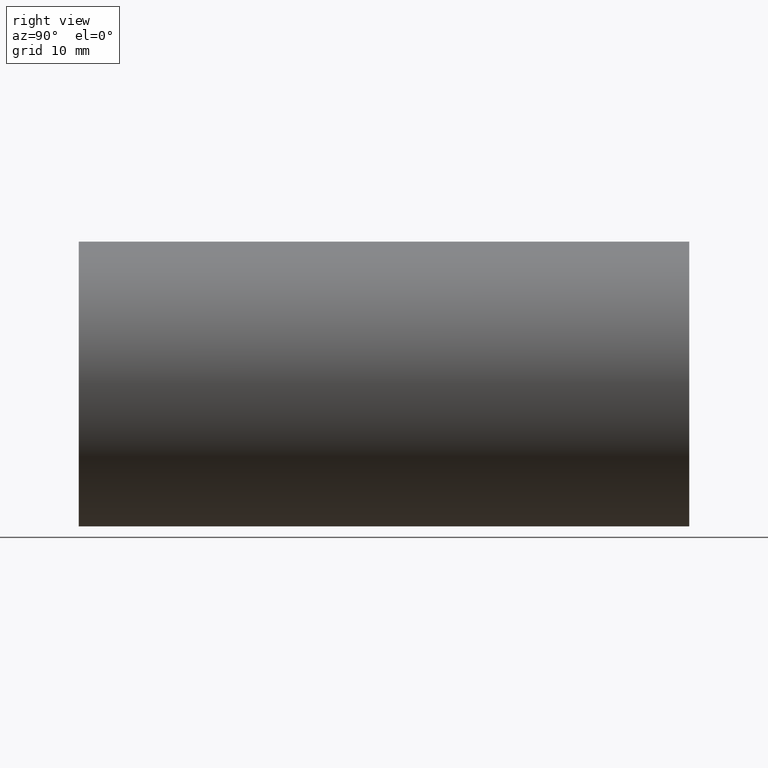
[diagram: clean part render]
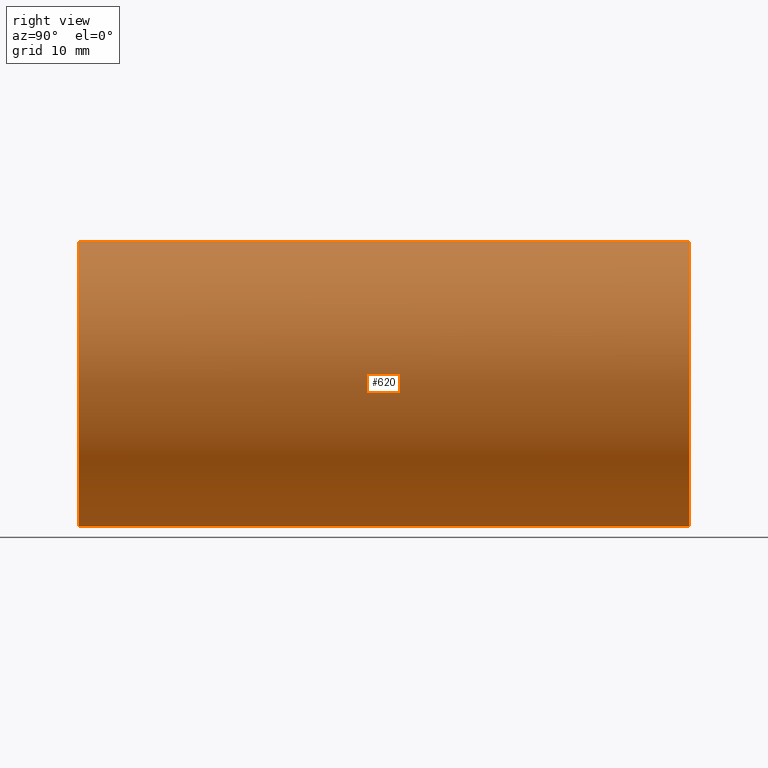
[diagram: same view with one face highlighted and labeled with its STEP entity id]
A machine part, right view. The second image highlights one B-rep face of the part: STEP entity #620.
In plain terms, the highlighted cylindrical surface (partial cylindrical patch) has radius 19.05 mm, axis along (-0, 1, -0).
Its self-contained STEP definition (entity closure, byte-faithful):
#8 = VERTEX_POINT ( 'NONE', #82 ) ;
#17 = AXIS2_PLACEMENT_3D ( 'NONE', #487, #193, #330 ) ;
#30 = ORIENTED_EDGE ( 'NONE', *, *, #162, .T. ) ;
#37 = CARTESIAN_POINT ( 'NONE',  ( 0.0000000000000000000, 161.3761669434274500, 19.05000000000002200 ) ) ;
#40 = VERTEX_POINT ( 'NONE', #85 ) ;
#61 = VERTEX_POINT ( 'NONE', #589 ) ;
#82 = CARTESIAN_POINT ( 'NONE',  ( 0.0000000000000000000, -2.775557561562891400E-014, 19.05000000000002200 ) ) ;
#85 = CARTESIAN_POINT ( 'NONE',  ( 2.332952152375710400E-015, 81.69999999999998900, -19.05000000000002200 ) ) ;
#106 = DIRECTION ( 'NONE',  ( -0.0000000000000000000, 1.000000000000000000, -0.0000000000000000000 ) ) ;
#117 = CARTESIAN_POINT ( 'NONE',  ( 0.0000000000000000000, 161.3761669434274500, 0.0000000000000000000 ) ) ;
#155 = AXIS2_PLACEMENT_3D ( 'NONE', #489, #256, #596 ) ;
#156 = LINE ( 'NONE', #37, #398 ) ;
#162 = EDGE_CURVE ( 'NONE', #8, #409, #512, .T. ) ;
#168 = CYLINDRICAL_SURFACE ( 'NONE', #195, 19.05000000000002200 ) ;
#169 = FACE_OUTER_BOUND ( 'NONE', #182, .T. ) ;
#182 = EDGE_LOOP ( 'NONE', ( #30, #266, #549, #506 ) ) ;
#193 = DIRECTION ( 'NONE',  ( -0.0000000000000000000, 1.000000000000000000, -0.0000000000000000000 ) ) ;
#195 = AXIS2_PLACEMENT_3D ( 'NONE', #117, #106, #288 ) ;
#223 = LINE ( 'NONE', #609, #588 ) ;
#239 = EDGE_CURVE ( 'NONE', #61, #40, #568, .T. ) ;
#256 = DIRECTION ( 'NONE',  ( -0.0000000000000000000, 1.000000000000000000, -0.0000000000000000000 ) ) ;
#266 = ORIENTED_EDGE ( 'NONE', *, *, #399, .T. ) ;
#288 = DIRECTION ( 'NONE',  ( 0.0000000000000000000, 0.0000000000000000000, 1.000000000000000000 ) ) ;
#330 = DIRECTION ( 'NONE',  ( 0.0000000000000000000, 0.0000000000000000000, 1.000000000000000000 ) ) ;
#358 = CARTESIAN_POINT ( 'NONE',  ( 2.332952152375710400E-015, -2.775557561562891400E-014, -19.05000000000002200 ) ) ;
#363 = DIRECTION ( 'NONE',  ( -0.0000000000000000000, 1.000000000000000000, -0.0000000000000000000 ) ) ;
#398 = VECTOR ( 'NONE', #363, 1000.000000000000000 ) ;
#399 = EDGE_CURVE ( 'NONE', #409, #40, #223, .T. ) ;
#408 = DIRECTION ( 'NONE',  ( -0.0000000000000000000, 1.000000000000000000, -0.0000000000000000000 ) ) ;
#409 = VERTEX_POINT ( 'NONE', #358 ) ;
#428 = EDGE_CURVE ( 'NONE', #8, #61, #156, .T. ) ;
#487 = CARTESIAN_POINT ( 'NONE',  ( 0.0000000000000000000, -2.775557561562891400E-014, 0.0000000000000000000 ) ) ;
#489 = CARTESIAN_POINT ( 'NONE',  ( 0.0000000000000000000, 81.69999999999998900, 0.0000000000000000000 ) ) ;
#506 = ORIENTED_EDGE ( 'NONE', *, *, #428, .F. ) ;
#512 = CIRCLE ( 'NONE', #17, 19.05000000000002200 ) ;
#549 = ORIENTED_EDGE ( 'NONE', *, *, #239, .F. ) ;
#568 = CIRCLE ( 'NONE', #155, 19.05000000000002200 ) ;
#588 = VECTOR ( 'NONE', #408, 1000.000000000000000 ) ;
#589 = CARTESIAN_POINT ( 'NONE',  ( 0.0000000000000000000, 81.69999999999998900, 19.05000000000002200 ) ) ;
#596 = DIRECTION ( 'NONE',  ( 0.0000000000000000000, 0.0000000000000000000, 1.000000000000000000 ) ) ;
#609 = CARTESIAN_POINT ( 'NONE',  ( 2.332952152375710400E-015, 161.3761669434274500, -19.05000000000002200 ) ) ;
#620 = ADVANCED_FACE ( 'NONE', ( #169 ), #168, .T. ) ;